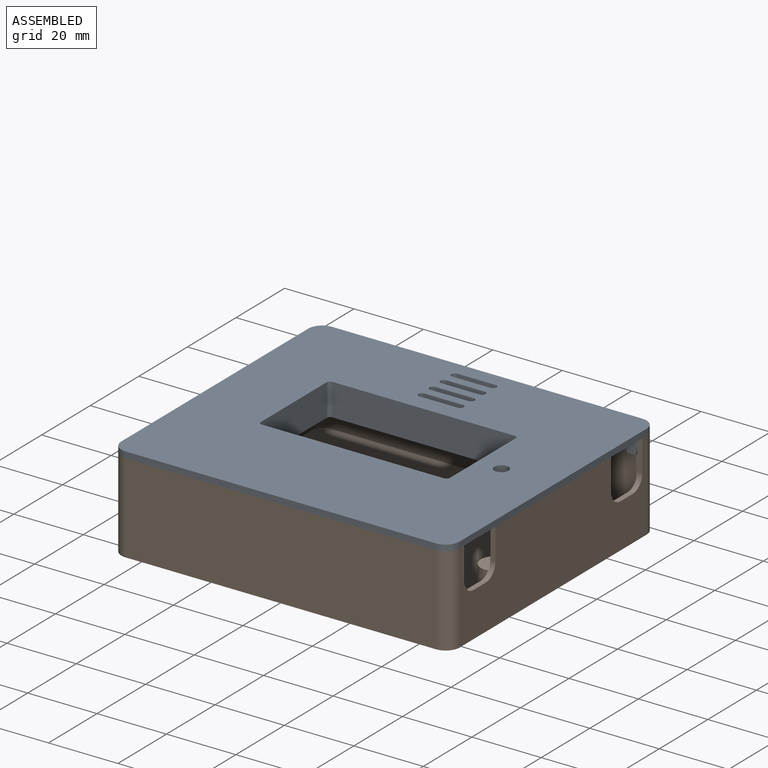
[diagram: assembled view]
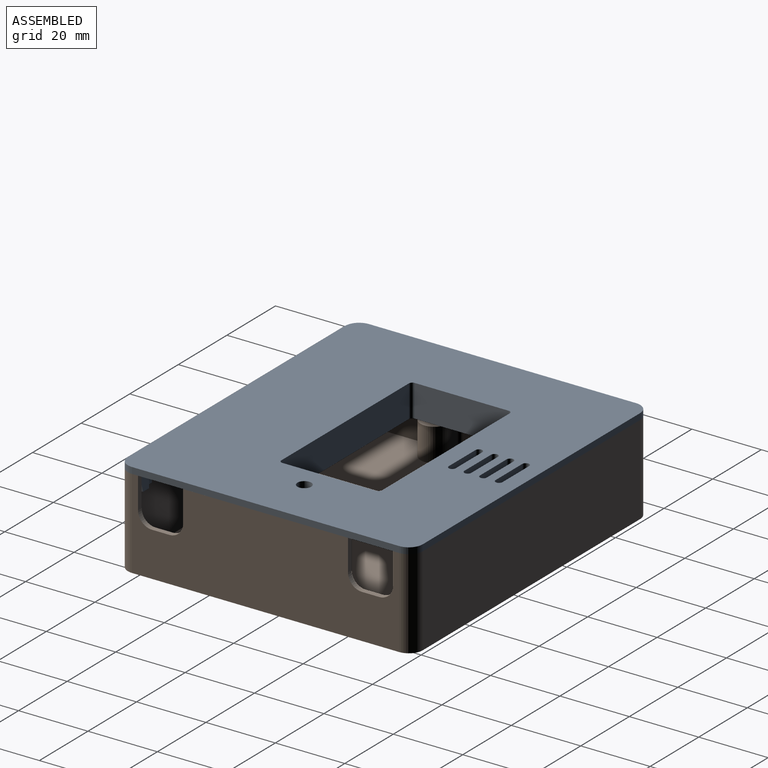
[diagram: assembled view, second angle]
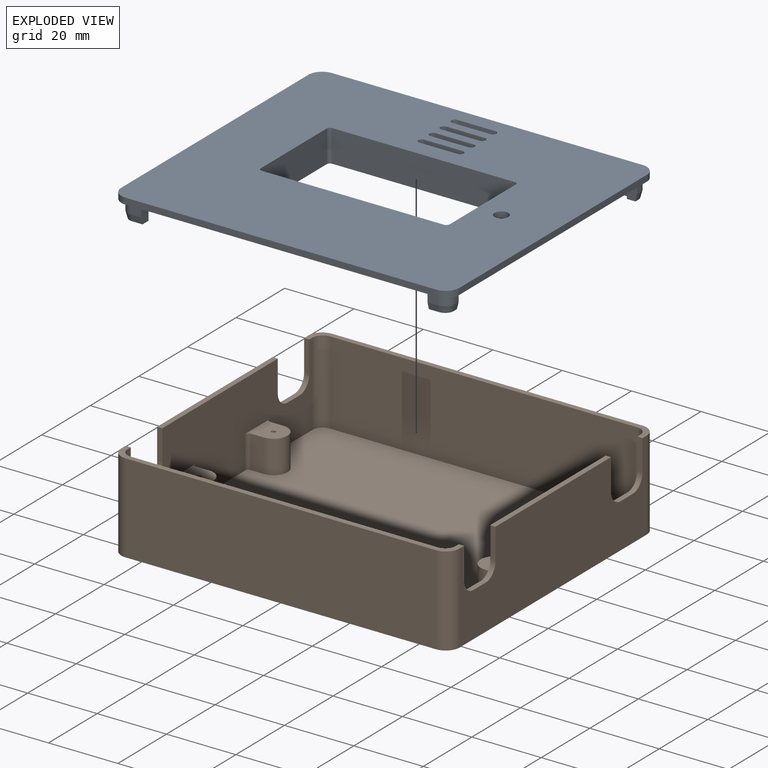
[diagram: exploded view]
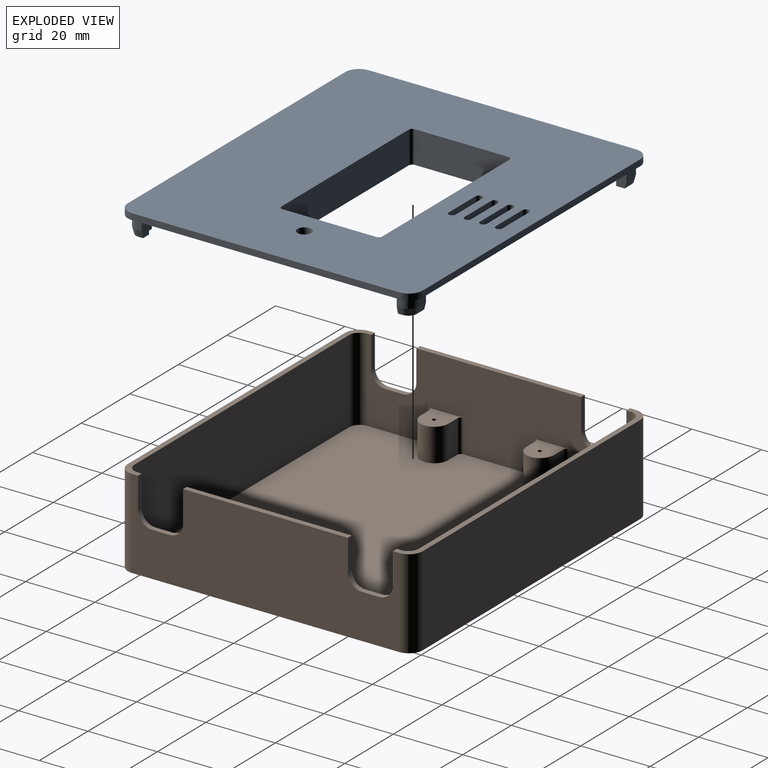
[diagram: exploded view, second angle]
ASSEMBLY  parts=2 mates=2
PART A: 96 faces, bbox 97.5x85x9.3 mm
  f0: plane 5x4mm, normal (0,-1,0), area 14.7mm2, adj f4,f29,f30,f33,f62,f73
  f1: plane 5x4mm, normal (0,1,0), area 14.7mm2, adj f4,f48,f53,f54,f61,f71
  f2: plane 5x4mm, normal (0,1,0), area 14.7mm2, adj f4,f43,f44,f47,f68,f78
  f3: plane 5x4mm, normal (0,-1,0), area 14.7mm2, adj f4,f38,f39,f40,f67,f76
  f4: plane 97.5x85mm, normal (0,0,-1), area 6228mm2, adj f0,f1,f2,f3,f5,f6,f7,f8
  f5: plane 11x1.8mm, normal (0,1,0), area 19.8mm2, adj f4,f26,f85,f86
  f6: plane 11x1.8mm, normal (0,1,0), area 19.8mm2, adj f4,f26,f83,f84
  f7: plane 11x1.8mm, normal (0,1,0), area 19.8mm2, adj f4,f26,f81,f82
  f8: plane 11x1.8mm, normal (0,1,0), area 19.8mm2, adj f4,f26,f79,f80
  f9: plane 27.1x9.3mm, normal (1,0,0), area 252mm2, adj f26,f55,f58,f95
  f10: plane 52.5x9.3mm, normal (0,-1,0), area 488.2mm2, adj f26,f55,f56,f95
  f11: plane 27.1x9.3mm, normal (-1,0,0), area 252mm2, adj f26,f56,f57,f95
  f12: cylinder r=4mm len=4mm, axis (0,0,-1), area 11.3mm2, adj f4,f13,f24,f26
  f13: plane 77x1.8mm, normal (1,0,0), area 138.6mm2, adj f4,f12,f14,f26
  f14: cylinder r=4mm len=4mm, axis (0,0,-1), area 11.3mm2, adj f4,f13,f15,f26
  f15: plane 89.5x1.8mm, normal (0,1,0), area 161.1mm2, adj f4,f14,f16,f26
  f16: cylinder r=4mm len=4mm, axis (0,0,-1), area 11.3mm2, adj f4,f15,f17,f26
  f17: plane 77x1.8mm, normal (-1,0,0), area 138.6mm2, adj f4,f16,f18,f26
  f18: cylinder r=4mm len=4mm, axis (0,0,-1), area 11.3mm2, adj f4,f17,f24,f26
  f19: plane 11x1.8mm, normal (0,-1,0), area 19.8mm2, adj f4,f26,f83,f84
  f20: plane 11x1.8mm, normal (0,-1,0), area 19.8mm2, adj f4,f26,f81,f82
  f21: plane 11x1.8mm, normal (0,-1,0), area 19.8mm2, adj f4,f26,f79,f80
  f22: cylinder r=2mm len=4mm, axis (0,0,-1), area 22.6mm2, adj f4,f26
  f23: plane 52.5x9.3mm, normal (0,1,0), area 488.2mm2, adj f26,f57,f58,f95
  f24: plane 89.5x1.8mm, normal (0,-1,0), area 161.1mm2, adj f4,f12,f18,f26
  f25: plane 11x1.8mm, normal (0,-1,0), area 19.8mm2, adj f4,f26,f85,f86
  f26: plane 97.5x85mm, normal (0,0,1), area 6575.5mm2, adj f5,f6,f7,f8,f9,f10,f11,f12
  f27: plane 3x3mm, normal (0,1,0), area 9mm2, adj f4,f28,f32,f64
  f28: cylinder r=3mm len=3mm, axis (0,0,1), area 14.1mm2, adj f4,f27,f29,f63
  f29: plane 3x1.25mm, normal (-1,0,0), area 3.8mm2, adj f0,f4,f28,f62
  f30: plane 4x1.25mm, normal (1,0,0), area 5mm2, adj f0,f31,f33,f73
  f31: plane 4x3mm, normal (0,-1,0), area 12mm2, adj f30,f32,f33,f74
  f32: plane 5x4mm, normal (1,0,0), area 14.7mm2, adj f4,f27,f31,f33,f64,f74
  f33: plane 5.46x3.71mm, normal (0,0,-1), area 15.2mm2, adj f0,f30,f31,f32,f62,f63,f64
  f34: cylinder r=3mm len=3mm, axis (0,0,1), area 14.1mm2, adj f4,f35,f39,f66
  f35: plane 3x3mm, normal (0,1,0), area 9mm2, adj f4,f34,f36,f65
  f36: plane 5x4mm, normal (-1,0,0), area 14.7mm2, adj f4,f35,f37,f40,f65,f75
  f37: plane 4x3mm, normal (0,-1,0), area 12mm2, adj f36,f38,f40,f75
  f38: plane 4x1.25mm, normal (-1,0,0), area 5mm2, adj f3,f37,f40,f76
  f39: plane 3x1.25mm, normal (1,0,0), area 3.8mm2, adj f3,f4,f34,f67
  f40: plane 5.46x3.71mm, normal (0,0,-1), area 15.2mm2, adj f3,f36,f37,f38,f65,f66,f67
  f41: plane 3x3mm, normal (0,-1,0), area 9mm2, adj f4,f42,f46,f70
  f42: cylinder r=3mm len=3mm, axis (0,0,1), area 14.1mm2, adj f4,f41,f43,f69
  f43: plane 3x1.25mm, normal (1,0,0), area 3.8mm2, adj f2,f4,f42,f68
  f44: plane 4x1.25mm, normal (-1,0,0), area 5mm2, adj f2,f45,f47,f78
  f45: plane 4x3mm, normal (0,1,0), area 12mm2, adj f44,f46,f47,f77
  f46: plane 5x4mm, normal (-1,0,0), area 14.7mm2, adj f4,f41,f45,f47,f70,f77
  f47: plane 5.46x3.71mm, normal (0,0,-1), area 15.2mm2, adj f2,f44,f45,f46,f68,f69,f70
  f48: plane 3x1.25mm, normal (-1,0,0), area 3.8mm2, adj f1,f4,f49,f61
  f49: cylinder r=3mm len=3mm, axis (0,0,1), area 14.1mm2, adj f4,f48,f50,f60
  f50: plane 3x3mm, normal (0,-1,0), area 9mm2, adj f4,f49,f51,f59
  f51: plane 5x4mm, normal (1,0,0), area 14.7mm2, adj f4,f50,f52,f54,f59,f72
  f52: plane 4x3mm, normal (0,1,0), area 12mm2, adj f51,f53,f54,f72
  f53: plane 4x1.25mm, normal (1,0,0), area 5mm2, adj f1,f52,f54,f71
  f54: plane 5.46x3.71mm, normal (0,0,-1), area 15.2mm2, adj f1,f51,f52,f53,f59,f60,f61
  f55: cylinder r=1mm len=9.3mm, axis (0,0,-1), area 14.6mm2, adj f9,f10,f26,f95
  f56: cylinder r=1mm len=9.3mm, axis (0,0,1), area 14.6mm2, adj f10,f11,f26,f95
  f57: cylinder r=1mm len=9.3mm, axis (0,0,-1), area 14.6mm2, adj f11,f23,f26,f95
  f58: cylinder r=1mm len=9.3mm, axis (0,0,1), area 14.6mm2, adj f9,f23,f26,f95
  f59: plane 3x2mm, normal (0,-0.97,-0.26), area 6.2mm2, adj f50,f51,f54,f60
  f60: cone r=3mm half-angle=15deg, axis (0,0,1), area 8.9mm2, adj f49,f54,f59,f61
  f61: plane 2x1.25mm, normal (-0.97,0,-0.26), area 2.6mm2, adj f1,f48,f54,f60
  f62: plane 2x1.25mm, normal (-0.97,0,-0.26), area 2.6mm2, adj f0,f29,f33,f63
  f63: cone r=3mm half-angle=15deg, axis (0,0,1), area 8.9mm2, adj f28,f33,f62,f64
  f64: plane 3x2mm, normal (0,0.97,-0.26), area 6.2mm2, adj f27,f32,f33,f63
  f65: plane 3x2mm, normal (0,0.97,-0.26), area 6.2mm2, adj f35,f36,f40,f66
  f66: cone r=3mm half-angle=15deg, axis (0,0,1), area 8.9mm2, adj f34,f40,f65,f67
  f67: plane 2x1.25mm, normal (0.97,0,-0.26), area 2.6mm2, adj f3,f39,f40,f66
  f68: plane 2x1.25mm, normal (0.97,0,-0.26), area 2.6mm2, adj f2,f43,f47,f69
  f69: cone r=3mm half-angle=15deg, axis (0,0,1), area 8.9mm2, adj f42,f47,f68,f70
  f70: plane 3x2mm, normal (0,-0.97,-0.26), area 6.2mm2, adj f41,f46,f47,f69
  f71: cylinder r=1mm len=1.25mm, axis (0,1,0), area 1.4mm2, adj f1,f4,f53,f72
  f72: cylinder r=1mm len=3mm, axis (-1,0,0), area 4.1mm2, adj f4,f51,f52,f71
  f73: cylinder r=1mm len=1.25mm, axis (0,1,0), area 1.4mm2, adj f0,f4,f30,f74
  f74: cylinder r=1mm len=3mm, axis (1,0,0), area 4.1mm2, adj f4,f31,f32,f73
  f75: cylinder r=1mm len=3mm, axis (1,0,0), area 4.1mm2, adj f4,f36,f37,f76
  f76: cylinder r=1mm len=1.25mm, axis (0,-1,0), area 1.4mm2, adj f3,f4,f38,f75
  f77: cylinder r=1mm len=3mm, axis (-1,0,0), area 4.1mm2, adj f4,f45,f46,f78
  f78: cylinder r=1mm len=1.25mm, axis (0,-1,0), area 1.4mm2, adj f2,f4,f44,f77
  f79: cylinder r=1mm len=2mm, axis (0,0,1), area 5.7mm2, adj f4,f8,f21,f26
  f80: cylinder r=1mm len=2mm, axis (0,0,-1), area 5.7mm2, adj f4,f8,f21,f26
  f81: cylinder r=1mm len=2mm, axis (0,0,1), area 5.7mm2, adj f4,f7,f20,f26
  f82: cylinder r=1mm len=2mm, axis (0,0,-1), area 5.7mm2, adj f4,f7,f20,f26
  f83: cylinder r=1mm len=2mm, axis (0,0,1), area 5.7mm2, adj f4,f6,f19,f26
  f84: cylinder r=1mm len=2mm, axis (0,0,-1), area 5.7mm2, adj f4,f6,f19,f26
  f85: cylinder r=1mm len=2mm, axis (0,0,1), area 5.7mm2, adj f4,f5,f25,f26
  f86: cylinder r=1mm len=2mm, axis (0,0,-1), area 5.7mm2, adj f4,f5,f25,f26
  f87: cylinder r=2.5mm len=7.5mm, axis (0,0,1), area 29.5mm2, adj f4,f88,f94,f95
  f88: plane 52.5x7.5mm, normal (0,1,0), area 393.8mm2, adj f4,f87,f89,f95
  f89: cylinder r=2.5mm len=7.5mm, axis (0,0,1), area 29.5mm2, adj f4,f88,f90,f95
  f90: plane 27.1x7.5mm, normal (1,0,0), area 203.2mm2, adj f4,f89,f91,f95
  f91: cylinder r=2.5mm len=7.5mm, axis (0,0,1), area 29.5mm2, adj f4,f90,f92,f95
  f92: plane 52.5x7.5mm, normal (0,-1,0), area 393.8mm2, adj f4,f91,f93,f95
  f93: cylinder r=2.5mm len=7.5mm, axis (0,0,1), area 29.5mm2, adj f4,f92,f94,f95
  f94: plane 27.1x7.5mm, normal (-1,0,0), area 203.2mm2, adj f4,f87,f93,f95
  f95: plane 57.5x32.1mm, normal (0,0,-1), area 255.3mm2, adj f9,f10,f11,f23,f55,f56,f57,f58
PART B: 74 faces, bbox 97.5x85x25.8 mm
  f0: plane 94.5x82mm, normal (0,0,1), area 7487mm2, adj f10,f11,f12,f13,f17,f18,f19,f23
  f1: plane 77x25.8mm, normal (1,0,0), area 1662.3mm2, adj f2,f8,f9,f36,f41,f42,f47,f48
  f2: cylinder r=4mm len=25.8mm, axis (0,0,1), area 162.1mm2, adj f1,f3,f9,f41
  f3: plane 89.5x25.8mm, normal (0,1,0), area 2309.1mm2, adj f2,f4,f9,f41
  f4: cylinder r=4mm len=25.8mm, axis (0,0,1), area 162.1mm2, adj f3,f5,f9,f41
  f5: plane 77x25.8mm, normal (-1,0,0), area 1662.3mm2, adj f4,f6,f9,f37,f41,f43,f47,f51
  f6: cylinder r=4mm len=25.8mm, axis (0,0,1), area 162.1mm2, adj f5,f7,f9,f47
  f7: plane 89.5x25.8mm, normal (0,-1,0), area 2309.1mm2, adj f6,f8,f9,f47
  f8: cylinder r=4mm len=25.8mm, axis (0,0,1), area 162.1mm2, adj f1,f7,f9,f47
  f9: plane 97.5x85mm, normal (0,0,-1), area 8273.8mm2, adj f1,f2,f3,f4,f5,f6,f7,f8
  f10: plane 76x24mm, normal (-1,0,0), area 1309.7mm2, adj f0,f15,f21,f36,f40,f41,f42,f44
  f11: plane 9.5x3.75mm, normal (0,1,0), area 35.6mm2, adj f0,f12,f15,f57
  f12: cylinder r=4mm len=9.5mm, axis (0,0,-1), area 119.4mm2, adj f0,f11,f13,f15
  f13: plane 9.5x3.75mm, normal (0,-1,0), area 35.6mm2, adj f0,f12,f15,f56
  f14: cylinder r=0.6mm len=9.5mm, axis (0,0,-1), area 35.8mm2, adj f15,f16
  f15: plane 10x8.75mm, normal (0,0,1), area 62.4mm2, adj f10,f11,f12,f13,f14,f56,f57
  f16: plane 1.2x1.2mm, normal (0,0,1), area 1.1mm2, adj f14
  f17: plane 9.5x3.75mm, normal (0,1,0), area 35.6mm2, adj f0,f18,f21,f55
  f18: cylinder r=4mm len=9.5mm, axis (0,0,-1), area 119.4mm2, adj f0,f17,f19,f21
  f19: plane 9.5x3.75mm, normal (0,-1,0), area 35.6mm2, adj f0,f18,f21,f54
  f20: cylinder r=0.6mm len=9.5mm, axis (0,0,-1), area 35.8mm2, adj f21,f22
  f21: plane 10x8.75mm, normal (0,0,1), area 62.4mm2, adj f10,f17,f18,f19,f20,f54,f55
  f22: plane 1.2x1.2mm, normal (0,0,1), area 1.1mm2, adj f20
  f23: plane 76x24mm, normal (1,0,0), area 1309.7mm2, adj f0,f28,f34,f37,f38,f41,f43,f46
  f24: plane 9.5x3.75mm, normal (0,1,0), area 35.6mm2, adj f0,f26,f28,f58
  f25: plane 9.5x3.75mm, normal (0,-1,0), area 35.6mm2, adj f0,f26,f28,f59
  f26: cylinder r=4mm len=9.5mm, axis (0,0,-1), area 119.4mm2, adj f0,f24,f25,f28
  f27: cylinder r=0.6mm len=9.5mm, axis (0,0,-1), area 35.8mm2, adj f28,f29
  f28: plane 10x8.75mm, normal (0,0,1), area 62.4mm2, adj f23,f24,f25,f26,f27,f58,f59
  f29: plane 1.2x1.2mm, normal (0,0,1), area 1.1mm2, adj f27
  f30: plane 9.5x3.75mm, normal (0,1,0), area 35.6mm2, adj f0,f32,f34,f61
  f31: plane 9.5x3.75mm, normal (0,-1,0), area 35.6mm2, adj f0,f32,f34,f60
  f32: cylinder r=4mm len=9.5mm, axis (0,0,-1), area 119.4mm2, adj f0,f30,f31,f34
  f33: cylinder r=0.6mm len=9.5mm, axis (0,0,-1), area 35.8mm2, adj f34,f35
  f34: plane 10x8.75mm, normal (0,0,1), area 62.4mm2, adj f23,f30,f31,f32,f33,f60,f61
  f35: plane 1.2x1.2mm, normal (0,0,1), area 1.1mm2, adj f33
  f36: plane 9x1.5mm, normal (0,-1,0), area 13.5mm2, adj f1,f10,f41,f69
  f37: plane 9x1.5mm, normal (0,-1,0), area 13.5mm2, adj f5,f23,f41,f67
  f38: cylinder r=3mm len=24mm, axis (0,0,-1), area 113.1mm2, adj f0,f23,f39,f41
  f39: plane 88.5x24mm, normal (0,-1,0), area 2124mm2, adj f0,f38,f40,f41
  f40: cylinder r=3mm len=24mm, axis (0,0,-1), area 113.1mm2, adj f0,f10,f39,f41
  f41: plane 97.5x5.75mm, normal (0,0,1), area 156mm2, adj f1,f2,f3,f4,f5,f10,f23,f36
  f42: plane 9x1.5mm, normal (0,1,0), area 13.5mm2, adj f1,f10,f47,f70
  f43: plane 9x1.5mm, normal (0,1,0), area 13.5mm2, adj f5,f23,f47,f72
  f44: cylinder r=3mm len=24mm, axis (0,0,-1), area 113.1mm2, adj f0,f10,f45,f47
  f45: plane 88.5x24mm, normal (0,1,0), area 2124mm2, adj f0,f44,f46,f47
  f46: cylinder r=3mm len=24mm, axis (0,0,-1), area 113.1mm2, adj f0,f23,f45,f47
  f47: plane 97.5x5.75mm, normal (0,0,1), area 156mm2, adj f1,f5,f6,f7,f8,f10,f23,f42
  f48: plane 9x1.5mm, normal (0,1,0), area 13.5mm2, adj f1,f10,f50,f68
  f49: plane 9x1.5mm, normal (0,-1,0), area 13.5mm2, adj f1,f10,f50,f71
  f50: plane 47.5x1.5mm, normal (0,0,1), area 71.3mm2, adj f1,f10,f48,f49
  f51: plane 9x1.5mm, normal (0,-1,0), area 13.5mm2, adj f5,f23,f53,f73
  f52: plane 9x1.5mm, normal (0,1,0), area 13.5mm2, adj f5,f23,f53,f66
  f53: plane 47.5x1.5mm, normal (0,0,1), area 71.3mm2, adj f5,f23,f51,f52
  f54: cylinder r=1mm len=9.5mm, axis (0,0,1), area 14.9mm2, adj f0,f10,f19,f21
  f55: cylinder r=1mm len=9.5mm, axis (0,0,-1), area 14.9mm2, adj f0,f10,f17,f21
  f56: cylinder r=1mm len=9.5mm, axis (0,0,1), area 14.9mm2, adj f0,f10,f13,f15
  f57: cylinder r=1mm len=9.5mm, axis (0,0,-1), area 14.9mm2, adj f0,f10,f11,f15
  f58: cylinder r=1mm len=9.5mm, axis (0,0,1), area 14.9mm2, adj f0,f23,f24,f28
  f59: cylinder r=1mm len=9.5mm, axis (0,0,-1), area 14.9mm2, adj f0,f23,f25,f28
  f60: cylinder r=1mm len=9.5mm, axis (0,0,-1), area 14.9mm2, adj f0,f23,f31,f34
  f61: cylinder r=1mm len=9.5mm, axis (0,0,1), area 14.9mm2, adj f0,f23,f30,f34
  f62: plane 5x1.5mm, normal (0,0,1), area 7.5mm2, adj f1,f10,f68,f69
  f63: plane 5x1.5mm, normal (0,0,1), area 7.5mm2, adj f1,f10,f70,f71
  f64: plane 5x1.5mm, normal (0,0,1), area 7.5mm2, adj f5,f23,f72,f73
  f65: plane 5x1.5mm, normal (0,0,1), area 7.5mm2, adj f5,f23,f66,f67
  f66: cylinder r=4mm len=4mm, axis (-1,0,0), area 9.4mm2, adj f5,f23,f52,f65
  f67: cylinder r=4mm len=4mm, axis (1,0,0), area 9.4mm2, adj f5,f23,f37,f65
  f68: cylinder r=4mm len=4mm, axis (-1,0,0), area 9.4mm2, adj f1,f10,f48,f62
  f69: cylinder r=4mm len=4mm, axis (1,0,0), area 9.4mm2, adj f1,f10,f36,f62
  f70: cylinder r=4mm len=4mm, axis (-1,0,0), area 9.4mm2, adj f1,f10,f42,f63
  f71: cylinder r=4mm len=4mm, axis (1,0,0), area 9.4mm2, adj f1,f10,f49,f63
  f72: cylinder r=4mm len=4mm, axis (-1,0,0), area 9.4mm2, adj f5,f23,f43,f64
  f73: cylinder r=4mm len=4mm, axis (1,0,0), area 9.4mm2, adj f5,f23,f51,f64
PLACE A t=(-22.71,-6.59,23.44)mm
PLACE B t=(-22.71,-6.59,-0.56)mm fixed
MATE cylindrical A.f42 <-> B.f44  axis (0,0,1) through (21.54,-44.59,21.94)mm
MATE fastened A.f4 <-> B.f47  axis (0,0,-1) through (22.04,-49.09,23.44)mm
